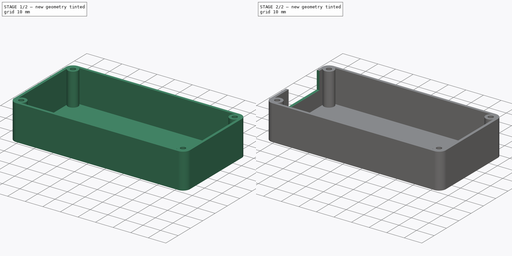
[diagram: build sequence overview — one tinted view per stage of 2, left to right]
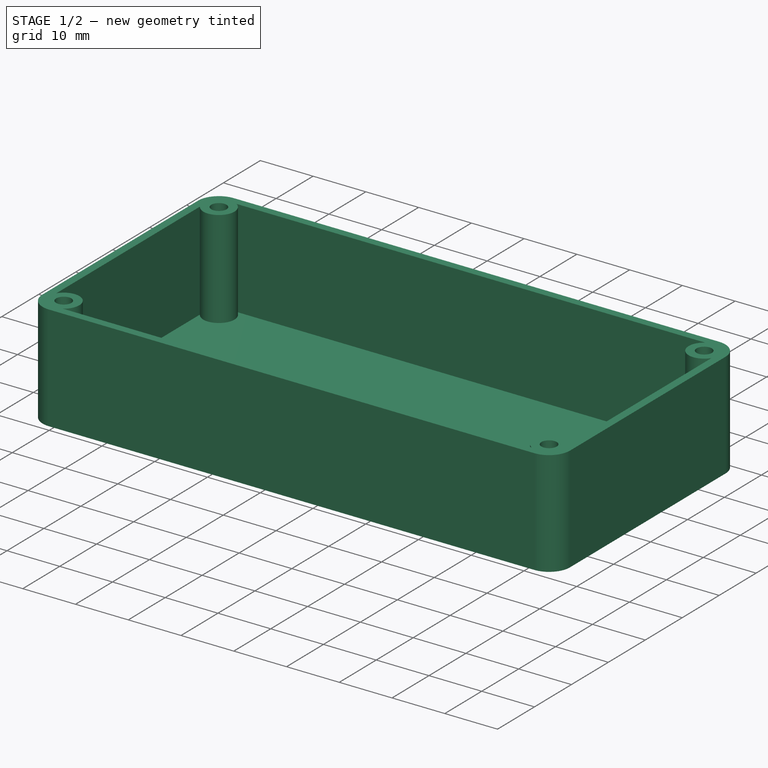
[diagram: stage 1 of 2 — iso view after this stage's code; geometry added in this stage tinted green]
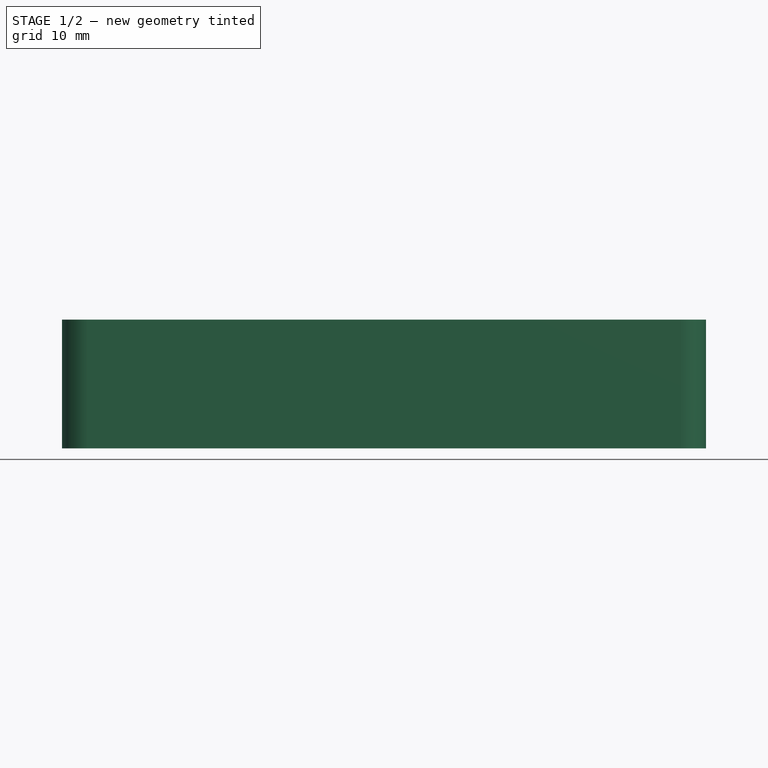
[diagram: stage 1 of 2 — front view after this stage's code; geometry added in this stage tinted green]
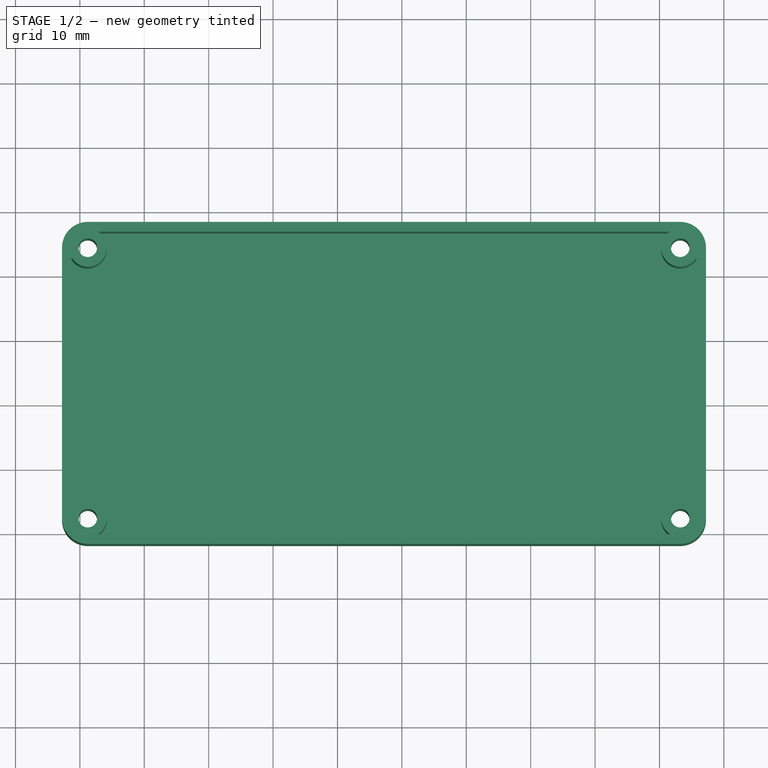
[diagram: stage 1 of 2 — top view after this stage's code; geometry added in this stage tinted green]
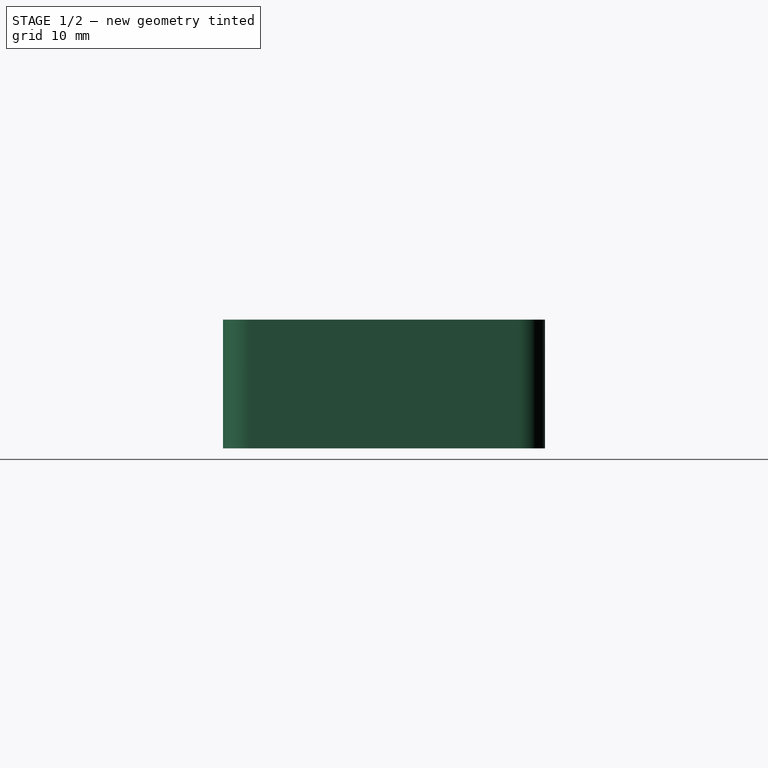
[diagram: stage 1 of 2 — right view after this stage's code; geometry added in this stage tinted green]
FCSTD DOCUMENT  (FreeCAD 0.21R33675 (Git))
Label: Case-PowerTest1
License: All rights reserved
LicenseURL: http://en.wikipedia.org/wiki/All_rights_reserved
objects: App::Link×45, Part::Feature×16, App::Part×6, Sketcher::SketchObject×3, PartDesign::CoordinateSystem×1, PartDesign::SubShapeBinder×1, PartDesign::Pad×1, PartDesign::Thickness×1, PartDesign::Pocket×1, PartDesign::Body×1
note: 28 computed .brp shape members not serialized (recipe doc carries the construction recipe); baked Part::Feature solids carry a one-line shape summary decoded from their .brp

FEATURE [PartDesign::CoordinateSystem] Local_CS_a0f2
  AttacherType = Attacher::AttachEngine3D
  MapMode = 2
  Support = -> [X_Axis001]
FEATURE [Part::Feature] Pcb_a0f2
  shape: bbox 100 x 50 x 1.6 mm, 126 faces (baked)
FEATURE [Sketcher::SketchObject] PCB_Sketch_a0f2
  FullyConstrained = false
  sketch-geometry (8):
    g0: LineSegment StartX=51.225 StartY=-31.8 StartZ=0 EndX=143.225 EndY=-31.8 EndZ=0
    g1: LineSegment StartX=51.225 StartY=-81.8 StartZ=0 EndX=143.225 EndY=-81.8 EndZ=0
    g2: LineSegment StartX=147.225 StartY=-77.8 StartZ=0 EndX=147.225 EndY=-35.8 EndZ=0
    g3: LineSegment StartX=47.225 StartY=-77.8 StartZ=0 EndX=47.225 EndY=-35.8 EndZ=0
    g4: ArcOfCircle CenterX=51.225 CenterY=-35.8 CenterZ=0 NormalX=0 NormalY=0 NormalZ=-1 AngleXU=1.06478e-07 Radius=4 StartAngle=0 EndAngle=1.5708
    g5: ArcOfCircle CenterX=51.225 CenterY=-77.8 CenterZ=0 NormalX=0 NormalY=0 NormalZ=-1 AngleXU=-1.5708 Radius=4 StartAngle=0 EndAngle=1.5708
    g6: ArcOfCircle CenterX=143.225 CenterY=-35.8 CenterZ=0 NormalX=0 NormalY=0 NormalZ=-1 AngleXU=1.5708 Radius=4 StartAngle=0 EndAngle=1.5708
    g7: ArcOfCircle CenterX=143.225 CenterY=-77.8 CenterZ=0 NormalX=0 NormalY=0 NormalZ=-1 AngleXU=-3.14159 Radius=4 StartAngle=0 EndAngle=1.5708
  constraints (8):
    c: Coincident(g3,g5)
    c: Coincident(g3,g4)
    c: Coincident(g1,g5)
    c: Coincident(g0,g4)
    c: Coincident(g1,g7)
    c: Coincident(g0,g6)
    c: Coincident(g2,g7)
    c: Coincident(g2,g6)
FEATURE [App::Part] Board_Geoms_a0f2
  Group = -> [Pcb_a0f2,PCB_Sketch_a0f2]
  Origin = -> Origin
FEATURE [Part::Feature] Shape  label="L8_L_1210_3225Metric_2d4ccfa0243f"
  Placement = pos=(100.825,-57.4,0) rot=(0,0,1;3.14159rad)
  shape: bbox 3.2 x 2.5 x 2.5 mm, 28 faces (baked)
FEATURE [Part::Feature] Shape001  label="C19_CP_Elec_63x58_3d50da2ba910"
  Placement = pos=(69.525,-73.125,0) rot=(0,0,1;3.14159rad)
  shape: bbox 8.606 x 8.603 x 5.8 mm, 41 faces (baked)
FEATURE [Part::Feature] Shape002  label="D2_D_SOD_123_5163392023cc"
  Placement = pos=(69.3,-51.75,0) rot=(0,0,1;1.5708rad)
  shape: bbox 1.6 x 3.8 x 1.25 mm, 67 faces (baked)
FEATURE [App::Link] C19_CP_Elec_63x58_3d50da2ba910_ln_  label="C30_CP_Elec_63x58_8614862145ce"
  LinkPlacement = pos=(99.925,-76.35,0) rot=(0,0,1;1.5708rad)
  LinkedObject = -> Shape001
  Placement = pos=(99.925,-76.35,0) rot=(0,0,1;1.5708rad)
FEATURE [Part::Feature] Part__Feature  label="TestPoint_Loop_D2_54mm_Drill1_5mm_Beaded_cp"
  shape: bbox 3 x 3 x 3 mm, 4 faces (baked)
FEATURE [Part::Feature] Part__Feature001  label="TestPoint_Loop_D2_54mm_Drill1_5mm_Beaded_cp001"
  shape: bbox 3.415 x 0.9501 x 9.255 mm, 7 faces (baked)
FEATURE [App::Part] TestPoint_Loop_D2_54mm_Drill1_5mm_Beaded_cp  label="TP3_TestPoint_Loop_D2_54mm_Drill1_5mm_Beaded_cp002_f52cf6821900"
  Group = -> [Part__Feature,Part__Feature001]
  Origin = -> Origin008
  Placement = pos=(84.225,-34.1,0) rot=(0,0,1;0rad)
FEATURE [Part::Feature] Shape003  label="C21_C_0805_2012Metric_4d8f5897e760"
  Placement = pos=(66.9,-57.55,0) rot=(0,0,-1;1.5708rad)
  shape: bbox 1.25 x 2 x 1.25 mm, 28 faces (baked)
FEATURE [App::Link] C19_CP_Elec_63x58_3d50da2ba910_ln_001  label="C28_CP_Elec_63x58_f96490db509f"
  LinkPlacement = pos=(136.725,-53.3,0) rot=(0,0,1;1.5708rad)
  LinkedObject = -> Shape001
  Placement = pos=(136.725,-53.3,0) rot=(0,0,1;1.5708rad)
FEATURE [App::Link] C19_CP_Elec_63x58_3d50da2ba910_ln_002  label="C18_CP_Elec_63x58_aa44e1d63bb1"
  LinkPlacement = pos=(69.45,-65.575,0) rot=(0,0,1;3.14159rad)
  LinkedObject = -> Shape001
  Placement = pos=(69.45,-65.575,0) rot=(0,0,1;3.14159rad)
FEATURE [Part::Feature] Shape004  label="JP1_PinHeader_1x02_P254mm_Vertical_4832b94ae1b7"
  Placement = pos=(66.225,-45.45,0) rot=(0,0,1;1.5708rad)
  shape: bbox 5.08 x 2.54 x 11.54 mm, 52 faces (baked)
FEATURE [App::Link] C19_CP_Elec_63x58_3d50da2ba910_ln_003  label="C36_CP_Elec_63x58_6a77608af61b"
  LinkPlacement = pos=(112.925,-76.35,0) rot=(0,0,1;1.5708rad)
  LinkedObject = -> Shape001
  Placement = pos=(112.925,-76.35,0) rot=(0,0,1;1.5708rad)
FEATURE [App::Link] L8_L_1210_3225Metric_2d4ccfa0243f_ln_  label="L9_L_1210_3225Metric_fad707db7a7d"
  LinkPlacement = pos=(106.425,-73.65,0) rot=(0,0,1;3.14159rad)
  LinkedObject = -> Shape
  Placement = pos=(106.425,-73.65,0) rot=(0,0,1;3.14159rad)
FEATURE [App::Link] L8_L_1210_3225Metric_2d4ccfa0243f_ln_001  label="L4_L_1210_3225Metric_6c678ef6e171"
  LinkPlacement = pos=(96.125,-35.5,0) rot=(0,0,1;3.14159rad)
  LinkedObject = -> Shape
  Placement = pos=(96.125,-35.5,0) rot=(0,0,1;3.14159rad)
FEATURE [App::Link] D2_D_SOD_123_5163392023cc_ln_  label="D3_D_SOD_123_6401bade14ba"
  LinkPlacement = pos=(84.125,-41.4,0) rot=(0,0,-1;1.5708rad)
  LinkedObject = -> Shape002
  Placement = pos=(84.125,-41.4,0) rot=(0,0,-1;1.5708rad)
FEATURE [App::Link] L8_L_1210_3225Metric_2d4ccfa0243f_ln_002  label="L2_L_1210_3225Metric_6ffbfeaab9fb"
  LinkPlacement = pos=(95.975,-57.35,0) rot=(0,0,1;3.14159rad)
  LinkedObject = -> Shape
  Placement = pos=(95.975,-57.35,0) rot=(0,0,1;3.14159rad)
FEATURE [Part::Feature] Shape005  label="J8_JST_B3B_XH_A_da4232665941"
  Placement = pos=(132.425,-42.35,0) rot=(0,0,1;0rad)
  shape: bbox 9.9 x 5.75 x 10.4 mm, 117 faces (baked)
FEATURE [App::Link] C21_C_0805_2012Metric_4d8f5897e760_ln_  label="C23_C_0805_2012Metric_f8edb5082942"
  LinkPlacement = pos=(130.85,-51.175,0) rot=(0,0,1;3.14159rad)
  LinkedObject = -> Shape003
  Placement = pos=(130.85,-51.175,0) rot=(0,0,1;3.14159rad)
FEATURE [App::Link] C19_CP_Elec_63x58_3d50da2ba910_ln_004  label="C5_CP_Elec_63x58_866505b57450"
  LinkPlacement = pos=(89.725,-38.2,0) rot=(0,0,-1;1.5708rad)
  LinkedObject = -> Shape001
  Placement = pos=(89.725,-38.2,0) rot=(0,0,-1;1.5708rad)
FEATURE [App::Link] C19_CP_Elec_63x58_3d50da2ba910_ln_005  label="C1_CP_Elec_63x58_2366c4ae2c69"
  LinkPlacement = pos=(94.575,-65.15,0) rot=(0,0,-1;1.5708rad)
  LinkedObject = -> Shape001
  Placement = pos=(94.575,-65.15,0) rot=(0,0,-1;1.5708rad)
FEATURE [Part::Feature] Shape006  label="R15_R_0805_2012Metric_e25934f7be70"
  Placement = pos=(130.925,-67.95,0) rot=(0,0,1;0rad)
  shape: bbox 2 x 1.2 x 0.45 mm, 26 faces (baked)
FEATURE [App::Link] R15_R_0805_2012Metric_e25934f7be70_ln_  label="R4_R_0805_2012Metric_7f08151a5df7"
  LinkPlacement = pos=(61.9,-37.875,0) rot=(0,0,1;3.14159rad)
  LinkedObject = -> Shape006
  Placement = pos=(61.9,-37.875,0) rot=(0,0,1;3.14159rad)
FEATURE [Part::Feature] Shape007  label="J3_PinHeader_2x04_P254mm_Vertical_b89d94a74e83"
  Placement = pos=(124.775,-60.1,0) rot=(0,0,1;3.14159rad)
  shape: bbox 5.08 x 10.16 x 11.54 mm, 172 faces (baked)
FEATURE [App::Link] C19_CP_Elec_63x58_3d50da2ba910_ln_006  label="C9_CP_Elec_63x58_036328721a0c"
  LinkPlacement = pos=(94.775,-48.75,0) rot=(0,0,-1;1.5708rad)
  LinkedObject = -> Shape001
  Placement = pos=(94.775,-48.75,0) rot=(0,0,-1;1.5708rad)
FEATURE [App::Link] J8_JST_B3B_XH_A_da4232665941_ln_  label="J9_JST_B3B_XH_A_f8eae485e3c7"
  LinkPlacement = pos=(121.025,-73.7,0) rot=(0,0,1;1.5708rad)
  LinkedObject = -> Shape005
  Placement = pos=(121.025,-73.7,0) rot=(0,0,1;1.5708rad)
FEATURE [App::Link] C19_CP_Elec_63x58_3d50da2ba910_ln_007  label="C13_CP_Elec_63x58_b092e4051557"
  LinkPlacement = pos=(86.525,-76.4,0) rot=(0,0,1;1.5708rad)
  LinkedObject = -> Shape001
  Placement = pos=(86.525,-76.4,0) rot=(0,0,1;1.5708rad)
FEATURE [App::Link] L8_L_1210_3225Metric_2d4ccfa0243f_ln_003  label="L7_L_1210_3225Metric_f275aa83b710"
  LinkPlacement = pos=(108.925,-35.5,0) rot=(0,0,1;3.14159rad)
  LinkedObject = -> Shape
  Placement = pos=(108.925,-35.5,0) rot=(0,0,1;3.14159rad)
FEATURE [App::Link] D2_D_SOD_123_5163392023cc_ln_001  label="D5_D_SOD_123_7ebabb39ef85"
  LinkPlacement = pos=(83.1,-64.3,0) rot=(0,0,-1;1.5708rad)
  LinkedObject = -> Shape002
  Placement = pos=(83.1,-64.3,0) rot=(0,0,-1;1.5708rad)
FEATURE [App::Link] C19_CP_Elec_63x58_3d50da2ba910_ln_008  label="C35_CP_Elec_63x58_cea799c0f84a"
  LinkPlacement = pos=(109.725,-66.9,0) rot=(0,0,-1;1.5708rad)
  LinkedObject = -> Shape001
  Placement = pos=(109.725,-66.9,0) rot=(0,0,-1;1.5708rad)
FEATURE [App::Link] D2_D_SOD_123_5163392023cc_ln_002  label="D1_D_SOD_123_bc2c95ddcc31"
  LinkPlacement = pos=(69.3,-56.95,0) rot=(0,0,-1;1.5708rad)
  LinkedObject = -> Shape002
  Placement = pos=(69.3,-56.95,0) rot=(0,0,-1;1.5708rad)
FEATURE [App::Link] C19_CP_Elec_63x58_3d50da2ba910_ln_009  label="C32_CP_Elec_63x58_2d438026e6d0"
  LinkPlacement = pos=(102.375,-48.775,0) rot=(0,0,-1;1.5708rad)
  LinkedObject = -> Shape001
  Placement = pos=(102.375,-48.775,0) rot=(0,0,-1;1.5708rad)
FEATURE [App::Link] C21_C_0805_2012Metric_4d8f5897e760_ln_001  label="C24_C_0805_2012Metric_00e147cafa10"
  LinkPlacement = pos=(128.05,-54.575,0) rot=(0,0,1;1.5708rad)
  LinkedObject = -> Shape003
  Placement = pos=(128.05,-54.575,0) rot=(0,0,1;1.5708rad)
FEATURE [App::Link] C21_C_0805_2012Metric_4d8f5897e760_ln_002  label="C17_C_0805_2012Metric_97b64d677b64"
  LinkPlacement = pos=(133.137,-70.2,0) rot=(0,0,1;3.14159rad)
  LinkedObject = -> Shape003
  Placement = pos=(133.137,-70.2,0) rot=(0,0,1;3.14159rad)
FEATURE [App::Link] L8_L_1210_3225Metric_2d4ccfa0243f_ln_004  label="L5_L_1210_3225Metric_bd0664ea926c"
  LinkPlacement = pos=(96.15,-41.775,0) rot=(0,0,1;3.14159rad)
  LinkedObject = -> Shape
  Placement = pos=(96.15,-41.775,0) rot=(0,0,1;3.14159rad)
FEATURE [App::Link] C19_CP_Elec_63x58_3d50da2ba910_ln_010  label="C34_CP_Elec_63x58_33eb2a9a4ab7"
  LinkPlacement = pos=(115.325,-37.1,0) rot=(0,0,-1;1.5708rad)
  LinkedObject = -> Shape001
  Placement = pos=(115.325,-37.1,0) rot=(0,0,-1;1.5708rad)
FEATURE [App::Link] C19_CP_Elec_63x58_3d50da2ba910_ln_011  label="C33_CP_Elec_63x58_d73056064fdf"
  LinkPlacement = pos=(110.225,-47.2,0) rot=(0,0,-1;1.5708rad)
  LinkedObject = -> Shape001
  Placement = pos=(110.225,-47.2,0) rot=(0,0,-1;1.5708rad)
FEATURE [App::Link] R15_R_0805_2012Metric_e25934f7be70_ln_001  label="R2_R_0805_2012Metric_f63467f58451"
  LinkPlacement = pos=(65.7,-41.45,0) rot=(0,0,1;3.14159rad)
  LinkedObject = -> Shape006
  Placement = pos=(65.7,-41.45,0) rot=(0,0,1;3.14159rad)
FEATURE [Part::Feature] Shape008  label="U1_TSOT_23_5_f88cf059e139"
  Placement = pos=(61.9,-44.45,0) rot=(0,0,1;0rad)
  shape: bbox 2.8 x 2.9 x 0.95 mm, 109 faces (baked)
FEATURE [Part::Feature] Shape009  label="U9_SOT_223_57dfe14fc667"
  Placement = pos=(124.75,-45.85,0) rot=(0,0,1;0rad)
  shape: bbox 7 x 6.5 x 1.7 mm, 78 faces (baked)
FEATURE [App::Link] TP3_TestPoint_Loop_D2_54mm_Drill1_5mm_Beaded_cp002_f52cf6821900_ln_  label="TP2_TestPoint_Loop_D2_54mm_Drill1_5mm_Beaded_cp002_abedd190b2ce"
  LinkPlacement = pos=(84.225,-69.1,0) rot=(0,0,1;0rad)
  LinkedObject = -> TestPoint_Loop_D2_54mm_Drill1_5mm_Beaded_cp
  Placement = pos=(84.225,-69.1,0) rot=(0,0,1;0rad)
FEATURE [Part::Feature] Shape010  label="D6_LED_0805_2012Metric_d67e0da2ec66"
  Placement = pos=(65.675,-37.875,0) rot=(0,0,1;0rad)
  shape: bbox 2 x 1.25 x 1.1 mm, 50 faces (baked)
FEATURE [App::Link] R15_R_0805_2012Metric_e25934f7be70_ln_002  label="R16_R_0805_2012Metric_19862f9523fc"
  LinkPlacement = pos=(136.825,-72.6,0) rot=(0,0,1;3.14159rad)
  LinkedObject = -> Shape006
  Placement = pos=(136.825,-72.6,0) rot=(0,0,1;3.14159rad)
FEATURE [App::Link] L8_L_1210_3225Metric_2d4ccfa0243f_ln_005  label="L6_L_1210_3225Metric_52f580d01b0c"
  LinkPlacement = pos=(108.925,-40.5,0) rot=(0,0,1;3.14159rad)
  LinkedObject = -> Shape
  Placement = pos=(108.925,-40.5,0) rot=(0,0,1;3.14159rad)
FEATURE [App::Link] TP3_TestPoint_Loop_D2_54mm_Drill1_5mm_Beaded_cp002_f52cf6821900_ln_001  label="TP1_TestPoint_Loop_D2_54mm_Drill1_5mm_Beaded_cp002_bb85adcc6e65"
  LinkPlacement = pos=(87.925,-64,0) rot=(0,0,1;0rad)
  LinkedObject = -> TestPoint_Loop_D2_54mm_Drill1_5mm_Beaded_cp
  Placement = pos=(87.925,-64,0) rot=(0,0,1;0rad)
FEATURE [App::Link] D2_D_SOD_123_5163392023cc_ln_003  label="D4_D_SOD_123_5fb365ff1087"
  LinkPlacement = pos=(91.725,-55.7,0) rot=(0,0,1;1.5708rad)
  LinkedObject = -> Shape002
  Placement = pos=(91.725,-55.7,0) rot=(0,0,1;1.5708rad)
FEATURE [App::Link] C21_C_0805_2012Metric_4d8f5897e760_ln_003  label="C22_C_0805_2012Metric_820ffdcda2c3"
  LinkPlacement = pos=(119,-45.875,0) rot=(0,0,1;1.5708rad)
  LinkedObject = -> Shape003
  Placement = pos=(119,-45.875,0) rot=(0,0,1;1.5708rad)
FEATURE [App::Link] R15_R_0805_2012Metric_e25934f7be70_ln_003  label="R12_R_0805_2012Metric_ac526d98da22"
  LinkPlacement = pos=(66.9,-51.15,0) rot=(0,0,1;1.5708rad)
  LinkedObject = -> Shape006
  Placement = pos=(66.9,-51.15,0) rot=(0,0,1;1.5708rad)
FEATURE [App::Link] R15_R_0805_2012Metric_e25934f7be70_ln_004  label="R3_R_0805_2012Metric_9c6c62406c77"
  LinkPlacement = pos=(61.9,-41.45,0) rot=(0,0,1;3.14159rad)
  LinkedObject = -> Shape006
  Placement = pos=(61.9,-41.45,0) rot=(0,0,1;3.14159rad)
FEATURE [App::Link] C19_CP_Elec_63x58_3d50da2ba910_ln_012  label="C20_CP_Elec_63x58_579c1ecefb24"
  LinkPlacement = pos=(122.85,-37.125,0) rot=(0,0,-1;1.5708rad)
  LinkedObject = -> Shape001
  Placement = pos=(122.85,-37.125,0) rot=(0,0,-1;1.5708rad)
FEATURE [App::Link] R15_R_0805_2012Metric_e25934f7be70_ln_005  label="R1_R_0805_2012Metric_c10e09377c13"
  LinkPlacement = pos=(61.9,-48.25,0) rot=(0,0,1;3.14159rad)
  LinkedObject = -> Shape006
  Placement = pos=(61.9,-48.25,0) rot=(0,0,1;3.14159rad)
FEATURE [App::Link] C19_CP_Elec_63x58_3d50da2ba910_ln_013  label="C29_CP_Elec_63x58_04419b5219e7"
  LinkPlacement = pos=(102.3,-65.15,0) rot=(0,0,-1;1.5708rad)
  LinkedObject = -> Shape001
  Placement = pos=(102.3,-65.15,0) rot=(0,0,-1;1.5708rad)
FEATURE [App::Link] J8_JST_B3B_XH_A_da4232665941_ln_001  label="J7_JST_B3B_XH_A_087d2d0a3f46"
  LinkPlacement = pos=(129.725,-35.25,0) rot=(0,0,1;0rad)
  LinkedObject = -> Shape005
  Placement = pos=(129.725,-35.25,0) rot=(0,0,1;0rad)
FEATURE [App::Link] U9_SOT_223_57dfe14fc667_ln_  label="U8_SOT_223_81071f048336"
  LinkPlacement = pos=(129.962,-76,0) rot=(0,0,-1;1.5708rad)
  LinkedObject = -> Shape009
  Placement = pos=(129.962,-76,0) rot=(0,0,-1;1.5708rad)
FEATURE [App::Link] R15_R_0805_2012Metric_e25934f7be70_ln_006  label="R17_R_0805_2012Metric_ed2ec1829724"
  LinkPlacement = pos=(136.787,-70.2,0) rot=(0,0,1;0rad)
  LinkedObject = -> Shape006
  Placement = pos=(136.787,-70.2,0) rot=(0,0,1;0rad)
FEATURE [App::Link] C19_CP_Elec_63x58_3d50da2ba910_ln_014  label="C25_CP_Elec_63x58_3c4acd2c2951"
  LinkPlacement = pos=(133.025,-61.9,0) rot=(0,0,1;0rad)
  LinkedObject = -> Shape001
  Placement = pos=(133.025,-61.9,0) rot=(0,0,1;0rad)
FEATURE [App::Link] C21_C_0805_2012Metric_4d8f5897e760_ln_004  label="C27_C_0805_2012Metric_6e17e0577a78"
  LinkPlacement = pos=(127.425,-69.55,0) rot=(0,0,1;1.5708rad)
  LinkedObject = -> Shape003
  Placement = pos=(127.425,-69.55,0) rot=(0,0,1;1.5708rad)
FEATURE [App::Link] U1_TSOT_23_5_f88cf059e139_ln_  label="U7_TSOT_23_5_ad1f407551e6"
  LinkPlacement = pos=(131.1,-54.6375,0) rot=(0,0,-1;1.5708rad)
  LinkedObject = -> Shape008
  Placement = pos=(131.1,-54.6375,0) rot=(0,0,-1;1.5708rad)
FEATURE [App::Link] L8_L_1210_3225Metric_2d4ccfa0243f_ln_006  label="L3_L_1210_3225Metric_d2bb21ed278e"
  LinkPlacement = pos=(93.325,-73.7,0) rot=(0,0,1;3.14159rad)
  LinkedObject = -> Shape
  Placement = pos=(93.325,-73.7,0) rot=(0,0,1;3.14159rad)
FEATURE [App::Link] C19_CP_Elec_63x58_3d50da2ba910_ln_015  label="C31_CP_Elec_63x58_2f48f88f1c57"
  LinkPlacement = pos=(102.525,-38.2,0) rot=(0,0,-1;1.5708rad)
  LinkedObject = -> Shape001
  Placement = pos=(102.525,-38.2,0) rot=(0,0,-1;1.5708rad)
FEATURE [Part::Feature] Shape011  label="J10_PinSocket_1x10_P254mm_Horizontal_5f6506d53e06"
  Placement = pos=(145.55,-68.25,0) rot=(0,0,1;3.14159rad)
  shape: bbox 10.13 x 25.4 x 5.84 mm, 360 faces (baked)
FEATURE [App::Part] Top_a0f2
  Group = -> [Shape,Shape001,Shape002,C19_CP_Elec_63x58_3d50da2ba910_ln_,TestPoint_Loop_D2_54mm_Drill1_5mm_Beaded_cp,Shape003,C19_CP_Elec_63x58_3d50da2ba910_ln_001,C19_CP_Elec_63x58_3d50da2ba910_ln_002,Shape004,C19_CP_Elec_63x58_3d50da2ba910_ln_003,L8_L_1210_3225Metric_2d4ccfa0243f_ln_,L8_L_1210_3225Metric_2d4ccfa0243f_ln_001,D2_D_SOD_123_5163392023cc_ln_,L8_L_1210_3225Metric_2d4ccfa0243f_ln_002,Shape005,+43 more]
  Origin = -> Origin003
FEATURE [Part::Feature] Shape012  label="J4_PinHeader_2x06_P254mm_Vertical_053e09047dd6"
  Placement = pos=(115.65,-62.625,-1.6) rot=(1,0,0;3.14159rad)
  shape: bbox 5.08 x 15.24 x 11.54 mm, 256 faces (baked)
FEATURE [App::Part] Bot_a0f2
  Group = -> [Shape012]
  Origin = -> Origin004
FEATURE [App::Part] Step_Models_a0f2
  Group = -> [Top_a0f2,Bot_a0f2]
  Origin = -> Origin002
FEATURE [App::Part] Board_a0f2  label="EL-Load-PowerTest"
  Group = -> [Local_CS_a0f2,Board_Geoms_a0f2,Step_Models_a0f2]
  Origin = -> Origin001
FEATURE [PartDesign::SubShapeBinder] Binder
  BindCopyOnChange = 0
  BindMode = 0
  ClaimChildren = false
  Context = -> Body [Binder.]
  Fuse = false
  MakeFace = true
  OffsetFill = false
  OffsetIntersection = false
  OffsetJoinType = 0
  OffsetOpenResult = false
  PartialLoad = false
  Relative = true
  Support = -> [Board_a0f2[Board_Geoms_a0f2.Pcb_a0f2.Face126]]
  _Version = 2
FEATURE [Sketcher::SketchObject] Sketch
  ExternalGeometry = -> [Binder]
  FullyConstrained = true
  MapMode = 5
  Support = -> [XY_Plane009]
  sketch-geometry (14):
    g0: ArcOfCircle CenterX=51.225 CenterY=-35.8 CenterZ=0 NormalX=0 NormalY=0 NormalZ=1 AngleXU=0 Radius=4 StartAngle=1.5708 EndAngle=3.14159
    g1: LineSegment StartX=51.225 StartY=-31.8 StartZ=0 EndX=143.225 EndY=-31.8 EndZ=0
    g2: ArcOfCircle CenterX=143.225 CenterY=-35.8 CenterZ=0 NormalX=0 NormalY=0 NormalZ=1 AngleXU=0 Radius=4 StartAngle=5.5125e-12 EndAngle=1.5708
    g3: LineSegment StartX=147.225 StartY=-35.8 StartZ=0 EndX=147.225 EndY=-77.8 EndZ=0
    g4: ArcOfCircle CenterX=143.225 CenterY=-77.8 CenterZ=0 NormalX=0 NormalY=0 NormalZ=1 AngleXU=0 Radius=4 StartAngle=4.71239 EndAngle=6.28319
    g5: LineSegment StartX=143.225 StartY=-81.8 StartZ=0 EndX=51.225 EndY=-81.8 EndZ=0
    g6: ArcOfCircle CenterX=51.225 CenterY=-77.8 CenterZ=0 NormalX=0 NormalY=0 NormalZ=1 AngleXU=0 Radius=4 StartAngle=3.14159 EndAngle=4.71239
    g7: LineSegment StartX=47.225 StartY=-77.8 StartZ=0 EndX=47.225 EndY=-35.8 EndZ=0
    g8: GeomPoint X=47.225 Y=-31.8 Z=0
    g9: GeomPoint X=147.225 Y=-81.8 Z=0
    g10: Circle CenterX=51.225 CenterY=-35.8 CenterZ=0 NormalX=0 NormalY=0 NormalZ=1 AngleXU=0 Radius=1.45
    g11: Circle CenterX=51.225 CenterY=-77.8 CenterZ=0 NormalX=0 NormalY=0 NormalZ=1 AngleXU=0 Radius=1.45
    g12: Circle CenterX=143.225 CenterY=-35.8 CenterZ=0 NormalX=0 NormalY=0 NormalZ=1 AngleXU=0 Radius=1.45
    g13: Circle CenterX=143.225 CenterY=-77.8 CenterZ=0 NormalX=0 NormalY=0 NormalZ=1 AngleXU=0 Radius=1.45
  constraints (30):
    c: Tangent(g0,g1) = 1.5708
    c: Tangent(g1,g2) = 1.5708
    c: Tangent(g2,g3) = 1.5708
    c: Tangent(g3,g4) = 1.5708
    c: Tangent(g4,g5) = 1.5708
    c: Tangent(g5,g6) = 1.5708
    c: Tangent(g6,g7) = 1.5708
    c: Tangent(g7,g0) = 1.5708
    c: Horizontal(g1)
    c: Horizontal(g5)
    c: Vertical(g3)
    c: Vertical(g7)
    c: Equal(g0,g2)
    c: Equal(g2,g4)
    c: Equal(g4,g6)
    c: PointOnObject(g8,g1)
    c: PointOnObject(g8,g7)
    c: PointOnObject(g9,g3)
    c: PointOnObject(g9,g5)
    c: Coincident(g0,g-3)
    c: Coincident(g4,g-5)
    c: Equal(g-5,g4)
    c: Coincident(g10,g0)
    c: Coincident(g11,g6)
    c: Coincident(g12,g2)
    c: Coincident(g13,g4)
    c: Equal(g13,g11)
    c: Equal(g13,g10)
    c: Equal(g13,g12)
    c: Diameter(g13) = 2.9
FEATURE [PartDesign::Pad] Pad
  Direction = (0,0,1)
  Length = 20
  Length2 = 10
  Profile = -> Sketch
  ReferenceAxis = -> Sketch [N_Axis]
  Reversed = true
  Type = 0
FEATURE [PartDesign::Thickness] Thickness
  Base = -> Pad [Face13]
  BaseFeature = -> Pad
  Intersection = true
  Join = 1
  Mode = 1
  Reversed = true
  SupportTransform = false
  Value = 1.5
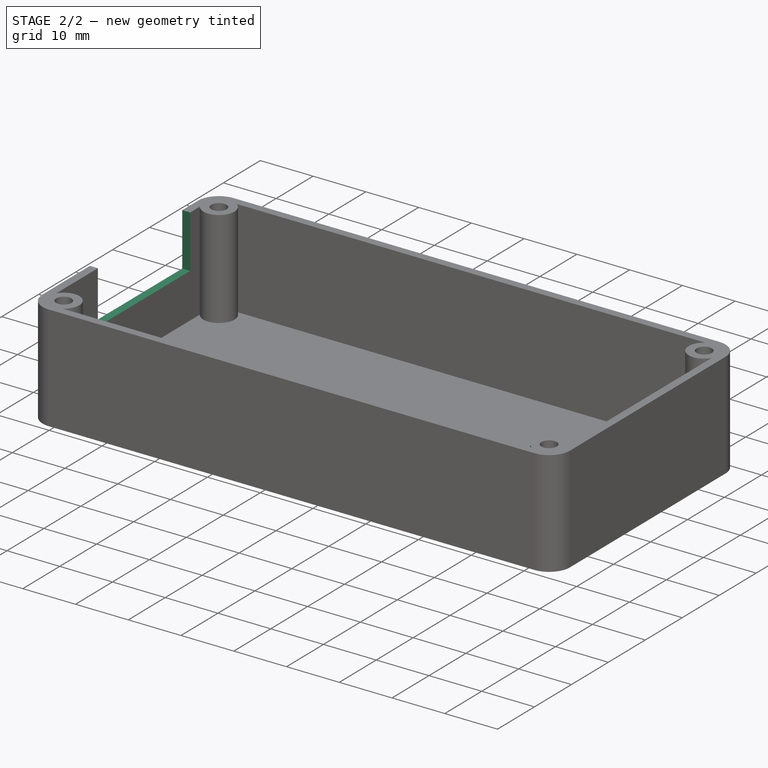
[diagram: stage 2 of 2 — iso view after this stage's code; geometry added in this stage tinted green]
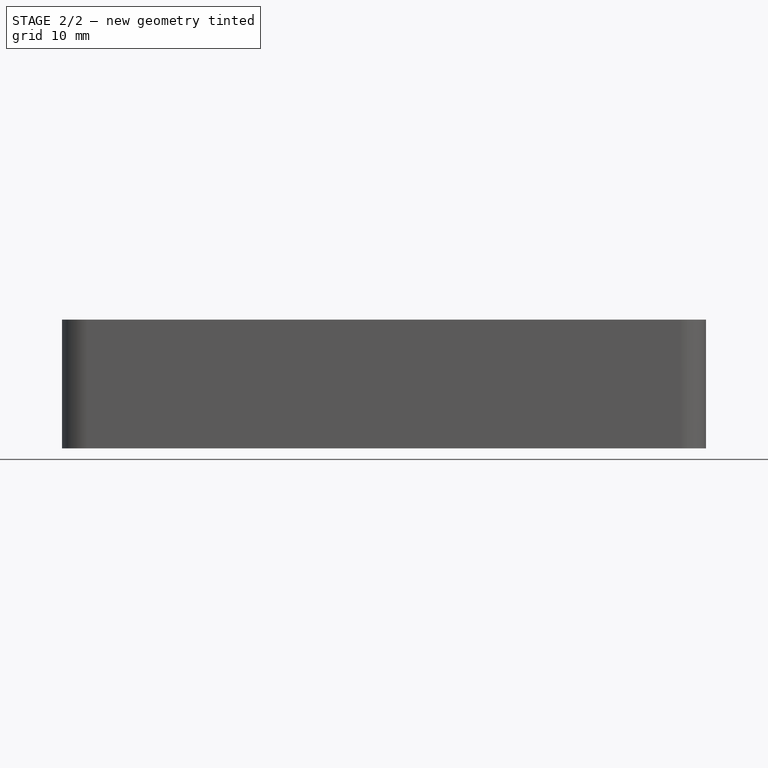
[diagram: stage 2 of 2 — front view after this stage's code; geometry added in this stage tinted green]
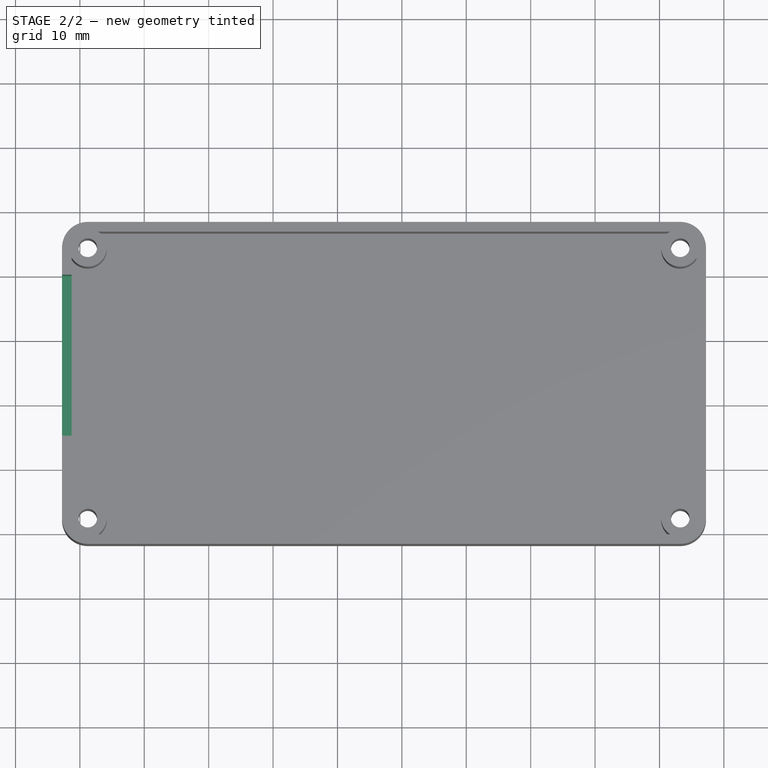
[diagram: stage 2 of 2 — top view after this stage's code; geometry added in this stage tinted green]
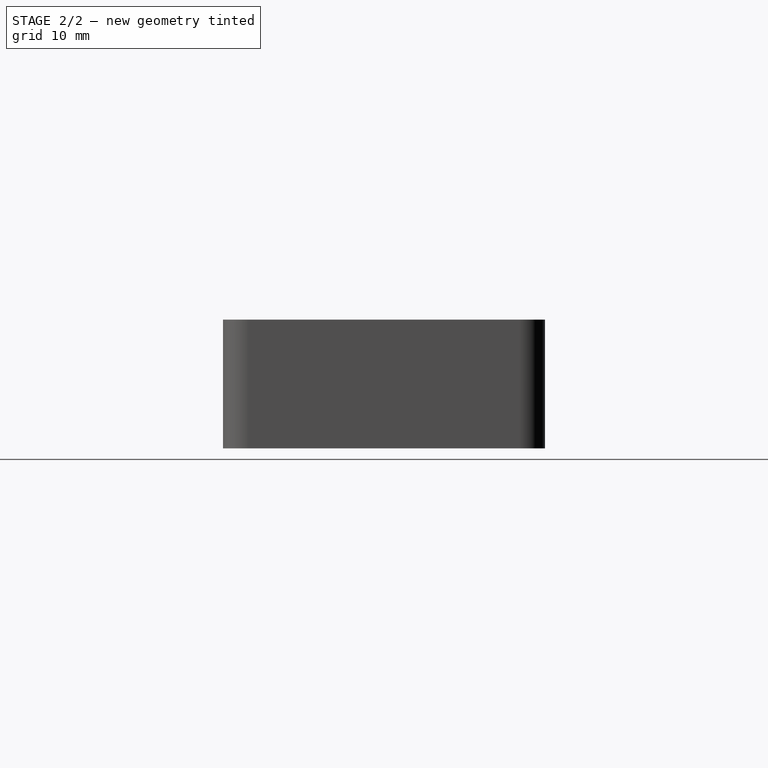
[diagram: stage 2 of 2 — right view after this stage's code; geometry added in this stage tinted green]
FEATURE [Sketcher::SketchObject] Sketch001
  FullyConstrained = true
  MapMode = 5
  Placement = pos=(0,0,0) rot=(0.57735,0.57735,0.57735;2.0944rad)
  Support = -> [YZ_Plane009]
  sketch-geometry (4):
    g0: LineSegment StartX=-65 StartY=0 StartZ=0 EndX=-40 EndY=0 EndZ=0
    g1: LineSegment StartX=-40 StartY=0 StartZ=0 EndX=-40 EndY=-10 EndZ=0
    g2: LineSegment StartX=-40 StartY=-10 StartZ=0 EndX=-65 EndY=-10 EndZ=0
    g3: LineSegment StartX=-65 StartY=-10 StartZ=0 EndX=-65 EndY=0 EndZ=0
  constraints (12):
    c: Coincident(g0,g1)
    c: Coincident(g1,g2)
    c: Coincident(g2,g3)
    c: Coincident(g3,g0)
    c: Horizontal(g0)
    c: Horizontal(g2)
    c: Vertical(g1)
    c: Vertical(g3)
    c: PointOnObject(g0,g-1)
    c: DistanceY(g3,g3) = 10
    c: DistanceX(g2,g2) = 25
    c: DistanceX(g0,g-1) = 40
FEATURE [PartDesign::Pocket] Pocket
  BaseFeature = -> Thickness
  Direction = (-1,2e-16,-3e-16)
  Length = 56
  Length2 = 5
  Profile = -> Sketch001
  ReferenceAxis = -> Sketch001 [N_Axis]
  Reversed = true
  Type = 0
FEATURE [PartDesign::Body] Body
  Group = -> [Binder,Sketch,Pad,Thickness,Sketch001,Pocket]
  Origin = -> Origin009
  Placement = pos=(0,0,-2) rot=(0,0,1;0rad)
  Tip = -> Pocket
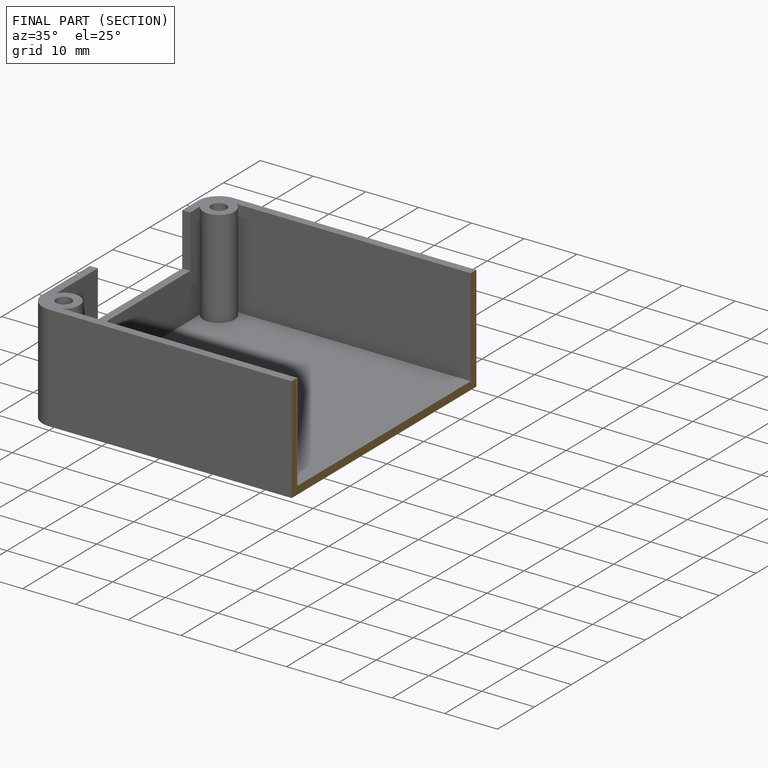
[diagram: finished part — half-section view (interior)]
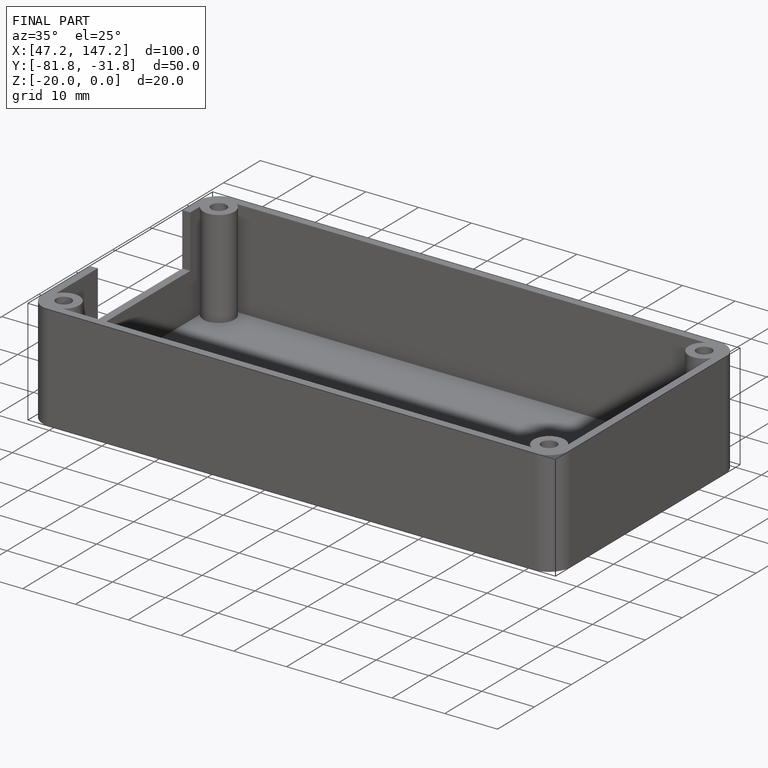
[diagram: finished part — iso view with bounding-box wireframe]
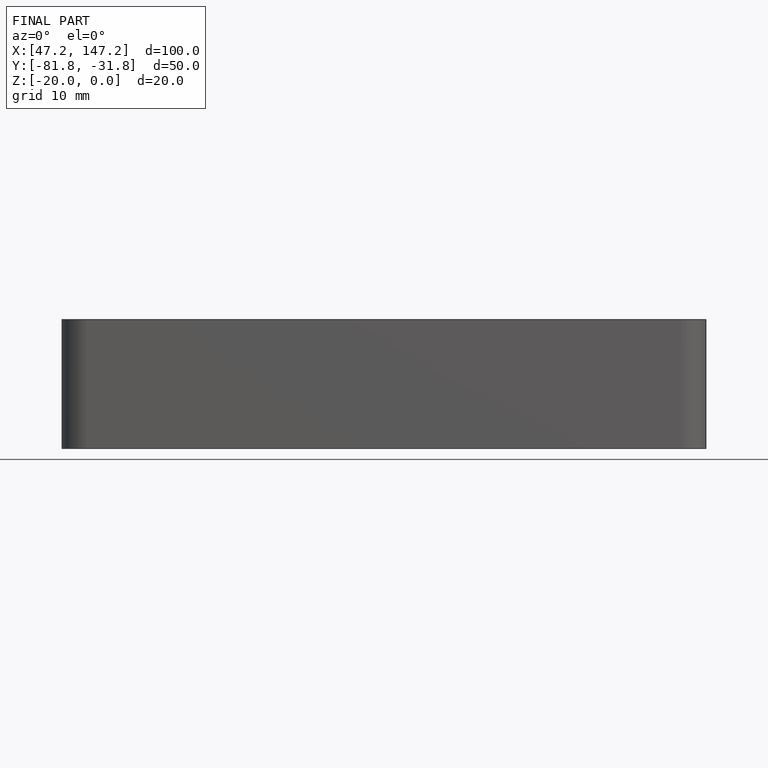
[diagram: finished part — front view with bounding-box wireframe]
